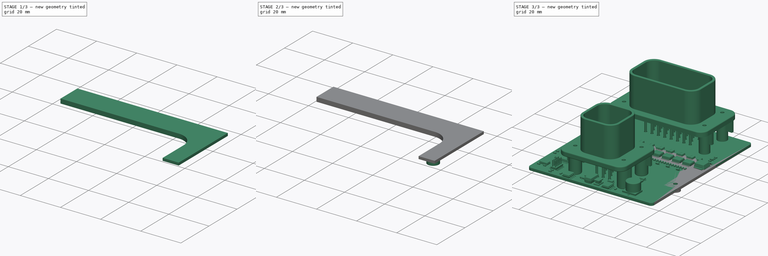
[diagram: build sequence overview — one tinted view per stage of 3, left to right]
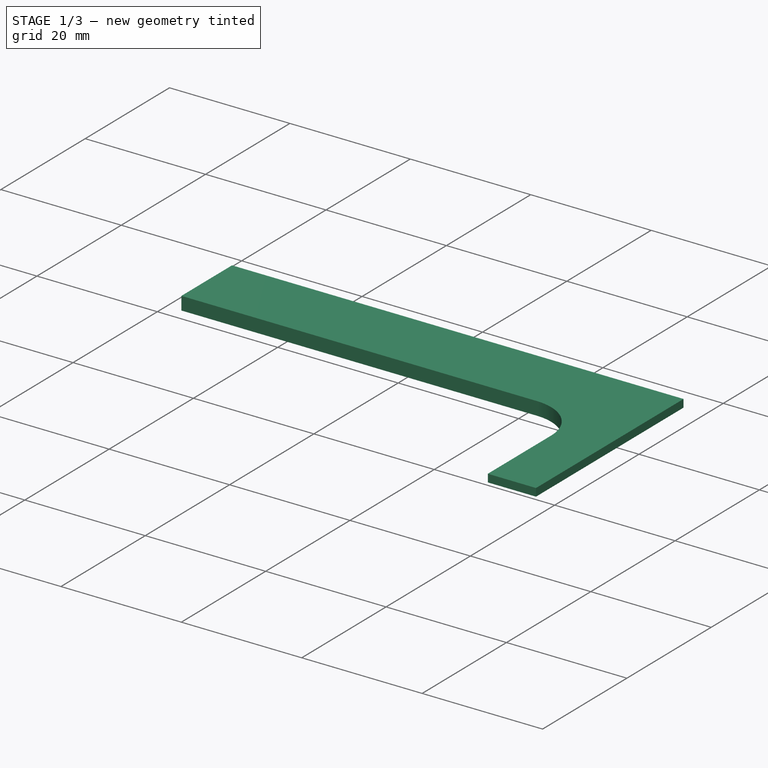
[diagram: stage 1 of 3 — iso view after this stage's code; geometry added in this stage tinted green]
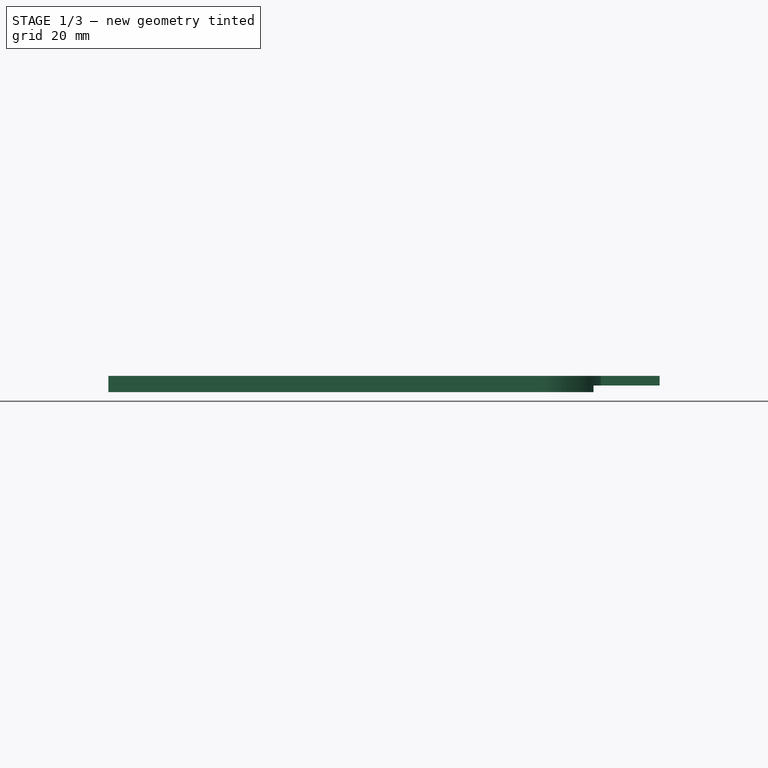
[diagram: stage 1 of 3 — front view after this stage's code; geometry added in this stage tinted green]
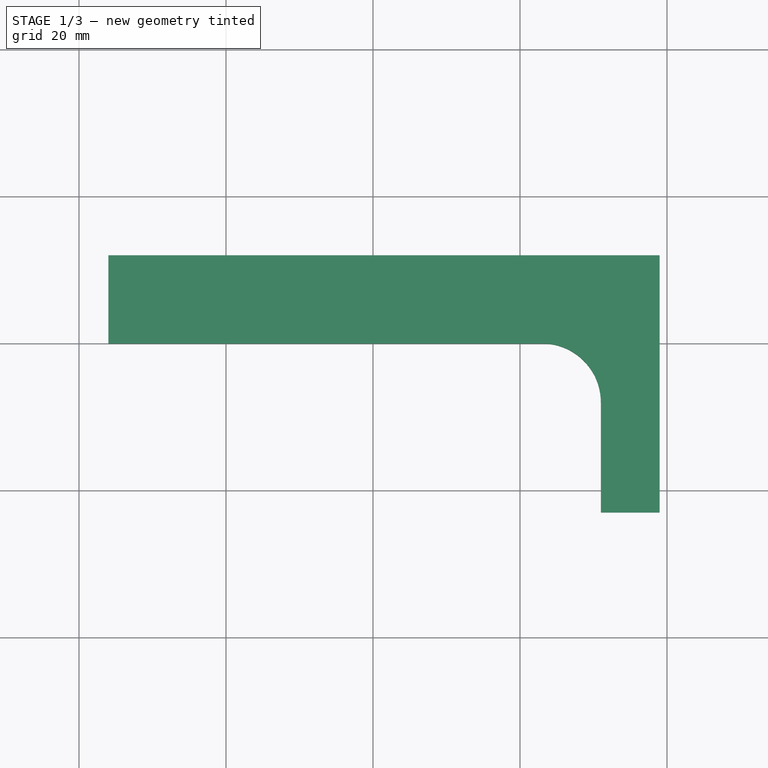
[diagram: stage 1 of 3 — top view after this stage's code; geometry added in this stage tinted green]
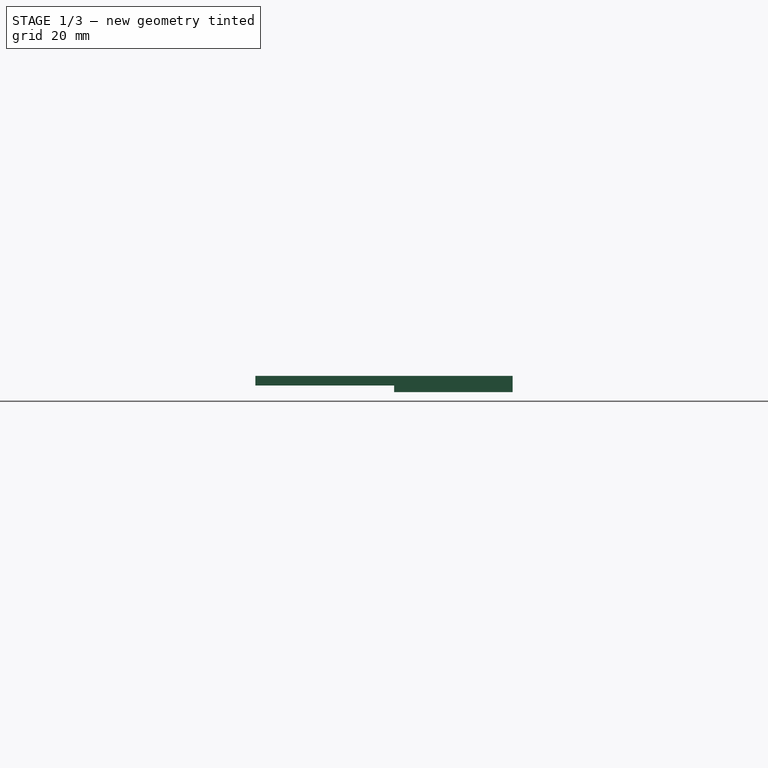
[diagram: stage 1 of 3 — right view after this stage's code; geometry added in this stage tinted green]
FCSTD DOCUMENT  (FreeCAD 0.17R13509 (Git))
Label: hcu_heatsink
License: All rights reserved
LicenseURL: http://en.wikipedia.org/wiki/All_rights_reserved
objects: Drawing::FeatureViewPython×14, Sketcher::SketchObject×4, Drawing::FeatureViewPart×4, PartDesign::Pad×3, Part::FeaturePython×1, PartDesign::Pocket×1, PartDesign::Body×1, Part::Feature×1, Drawing::FeaturePage×1
note: 15 computed .brp shape members not serialized (recipe doc carries the construction recipe); baked Part::Feature solids carry a one-line shape summary decoded from their .brp

FEATURE [Sketcher::SketchObject] Sketch
  MapMode = 5
  Support = -> [XY_Plane]
  sketch-geometry (7):
    g0: LineSegment StartX=-36 StartY=0 StartZ=0 EndX=23 EndY=0 EndZ=0
    g1: ArcOfCircle CenterX=23 CenterY=-8 CenterZ=0 NormalX=0 NormalY=0 NormalZ=1 AngleXU=0 Radius=8 StartAngle=0 EndAngle=1.5708
    g2: LineSegment StartX=31 StartY=-8 StartZ=0 EndX=31 EndY=-23 EndZ=0
    g3: LineSegment StartX=31 StartY=-23 StartZ=0 EndX=39 EndY=-23 EndZ=0
    g4: LineSegment StartX=39 StartY=-23 StartZ=0 EndX=39 EndY=12 EndZ=0
    g5: LineSegment StartX=39 StartY=12 StartZ=0 EndX=-36 EndY=12 EndZ=0
    g6: LineSegment StartX=-36 StartY=12 StartZ=0 EndX=-36 EndY=0 EndZ=0
  constraints (20):
    c: PointOnObject(g0,g-1)
    c: Horizontal(g0)
    c: Tangent(g0,g1) = 1.5708
    c: Vertical(g2)
    c: Coincident(g2,g3)
    c: Horizontal(g3)
    c: Coincident(g3,g4)
    c: Vertical(g4)
    c: Coincident(g4,g5)
    c: Horizontal(g5)
    c: Coincident(g5,g6)
    c: Coincident(g6,g0)
    c: Vertical(g6)
    c: Tangent(g1,g2) = 1.5708
    c: DistanceX(g-1,g3) = 39
    c: DistanceX(g3,g3) = 8
    c: Radius(g1) = 8
    c: DistanceX(g0,g-1) = 36
    c: DistanceY(g6,g6) = 12
    c: DistanceY(g3,g-1) = 23
FEATURE [PartDesign::Pad] Pad
  Length = 1.3
  Length2 = 100
  Profile = -> Sketch
  Reversed = true
  Type = 0
FEATURE [Sketcher::SketchObject] Sketch001
  ExternalGeometry = -> [Pad]
  MapMode = 5
  Placement = pos=(0,0,-1.3) rot=(1,0,0;3.14159rad)
  Support = -> [Pad]
  sketch-geometry (5):
    g0: LineSegment StartX=30 StartY=-12 StartZ=0 EndX=30 EndY=4.12702 EndZ=0
    g1: ArcOfCircle CenterX=23 CenterY=8 CenterZ=0 NormalX=0 NormalY=0 NormalZ=1 AngleXU=0 Radius=8 StartAngle=4.71239 EndAngle=5.77782
    g2: LineSegment StartX=23 StartY=0 StartZ=0 EndX=-36 EndY=0 EndZ=0
    g3: LineSegment StartX=-36 StartY=0 StartZ=0 EndX=-36 EndY=-12 EndZ=0
    g4: LineSegment StartX=-36 StartY=-12 StartZ=0 EndX=30 EndY=-12 EndZ=0
  constraints (13):
    c: PointOnObject(g0,g-4)
    c: PointOnObject(g0,g-3)
    c: Vertical(g0)
    c: Coincident(g1,g-3)
    c: Coincident(g1,g0)
    c: Coincident(g1,g-3)
    c: Tangent(g1,g2) = 1.5708
    c: Coincident(g2,g3)
    c: Coincident(g3,g-4)
    c: Vertical(g3)
    c: Coincident(g3,g4)
    c: Coincident(g4,g0)
    c: DistanceX(g0,g-4) = 9
FEATURE [PartDesign::Pad] Pad001
  BaseFeature = -> Pad
  Length = 0.9
  Length2 = 100
  Profile = -> Sketch001
  Type = 0
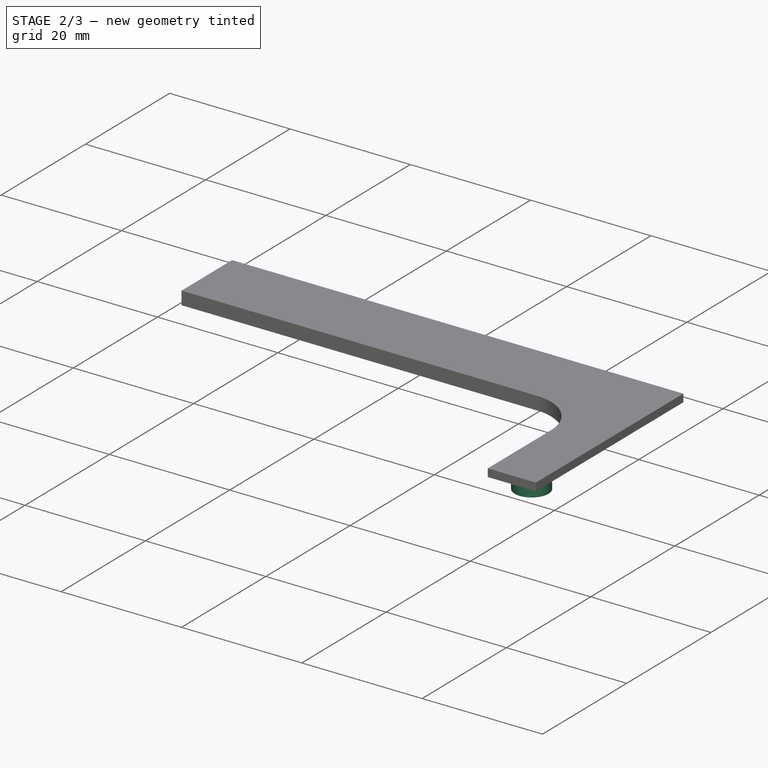
[diagram: stage 2 of 3 — iso view after this stage's code; geometry added in this stage tinted green]
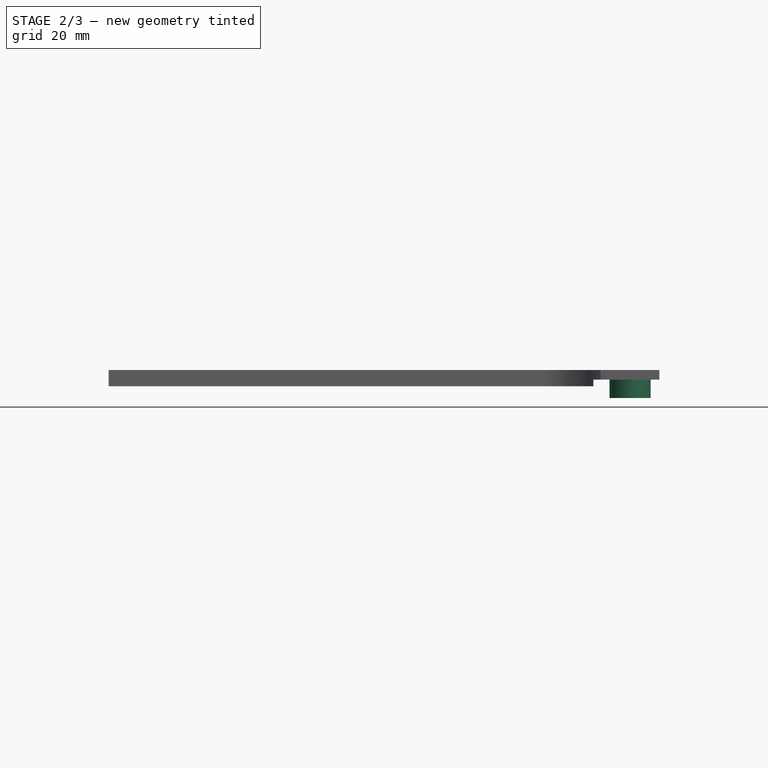
[diagram: stage 2 of 3 — front view after this stage's code; geometry added in this stage tinted green]
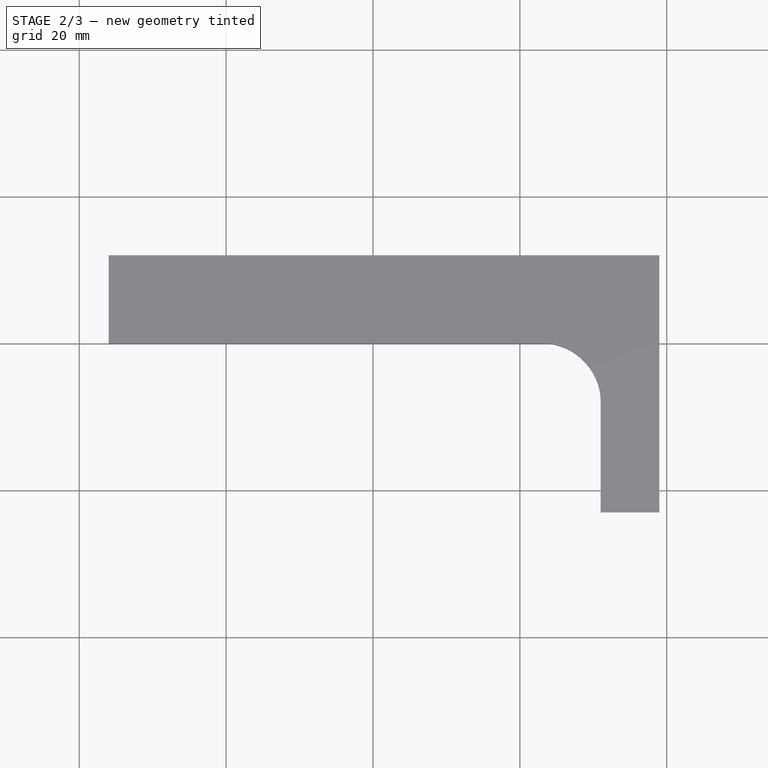
[diagram: stage 2 of 3 — top view after this stage's code; geometry added in this stage tinted green]
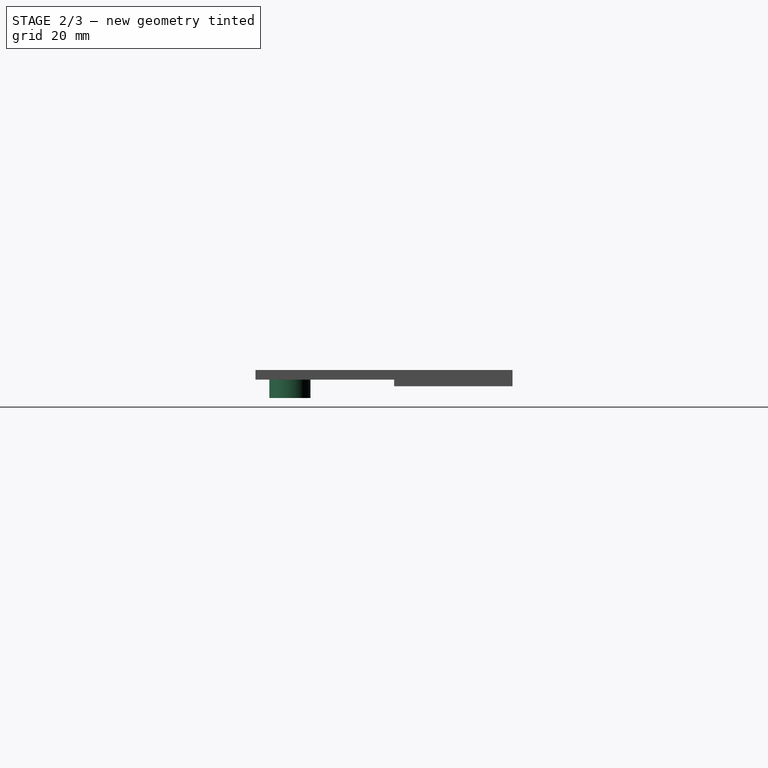
[diagram: stage 2 of 3 — right view after this stage's code; geometry added in this stage tinted green]
FEATURE [Sketcher::SketchObject] Sketch002
  MapMode = 5
  Placement = pos=(0,0,-1.3) rot=(1,0,0;3.14159rad)
  Support = -> [Pad001]
  sketch-geometry (1):
    g0: Circle CenterX=35 CenterY=18.3 CenterZ=0 NormalX=0 NormalY=0 NormalZ=1 AngleXU=0 Radius=2.8
  constraints (3):
    c: DistanceY(g-1,g0) = 18.3
    c: DistanceX(g-1,g0) = 35
    c: Radius(g0) = 2.8
FEATURE [PartDesign::Pad] Pad002
  BaseFeature = -> Pad001
  Length = 2.5
  Length2 = 100
  Profile = -> Sketch002
  Type = 0
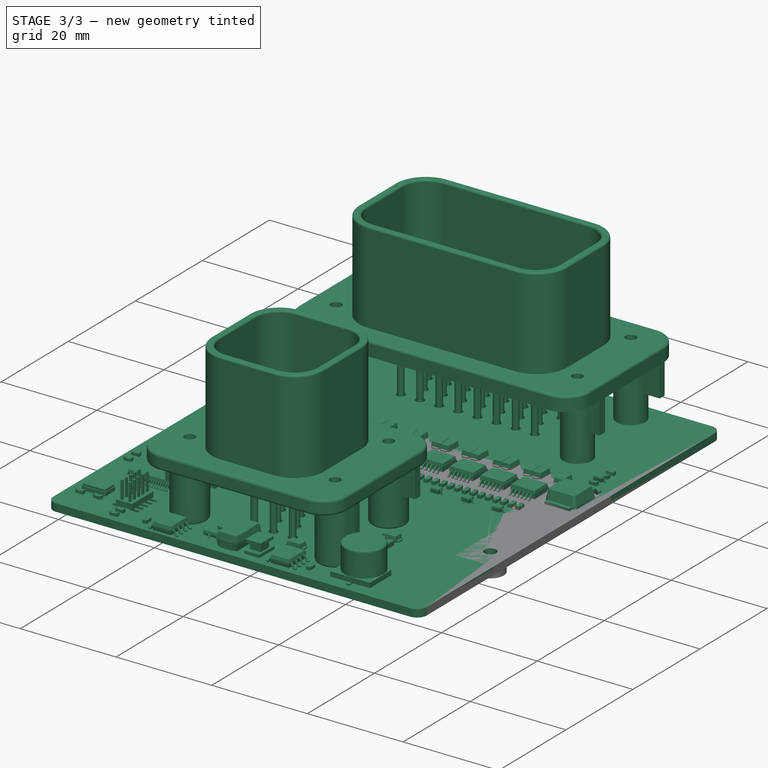
[diagram: stage 3 of 3 — iso view after this stage's code; geometry added in this stage tinted green]
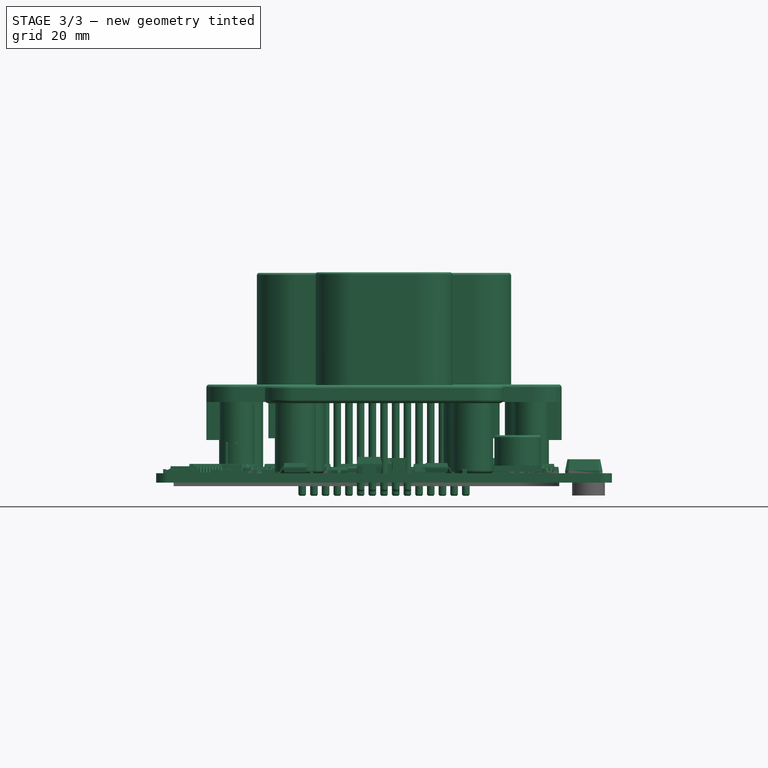
[diagram: stage 3 of 3 — front view after this stage's code; geometry added in this stage tinted green]
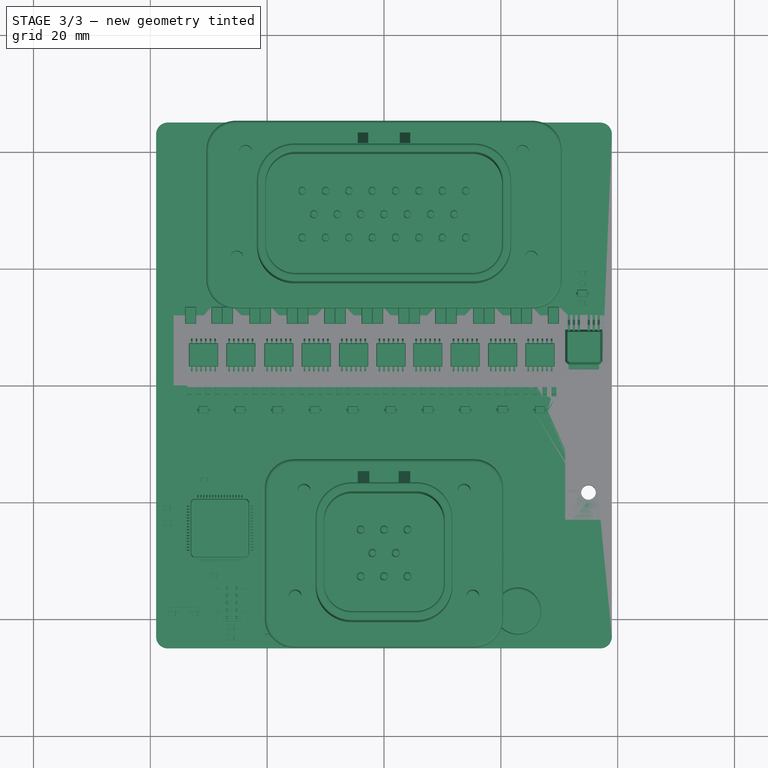
[diagram: stage 3 of 3 — top view after this stage's code; geometry added in this stage tinted green]
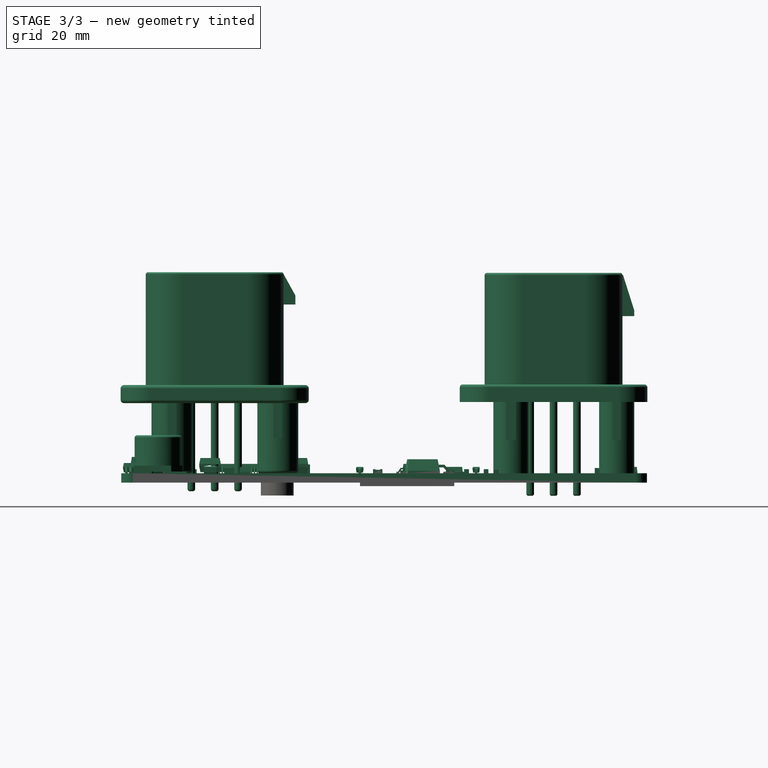
[diagram: stage 3 of 3 — right view after this stage's code; geometry added in this stage tinted green]
FEATURE [Part::FeaturePython] hcu_01  # a2plus imported part (geometry in sourceFile) (typed FeaturePython)
  fixedPosition = true
  sourceFile = <userpath>/uw/project/hcu/hw/hcu.FCStd
  timeLastImport = 1.5416e+09
  updateColors = true
FEATURE [Sketcher::SketchObject] Sketch003
  ExternalGeometry = -> [Pad002]
  MapMode = 5
  Placement = pos=(0,0,-3.8) rot=(1,0,0;3.14159rad)
  Support = -> [Pad002]
  sketch-geometry (1):
    g0: Circle CenterX=35 CenterY=18.3 CenterZ=0 NormalX=0 NormalY=0 NormalZ=1 AngleXU=0 Radius=1.25
  constraints (2):
    c: Coincident(g0,g-3)
    c: Radius(g0) = 1.25
FEATURE [PartDesign::Pocket] Pocket
  BaseFeature = -> Pad002
  Length = 5
  Length2 = 100
  Profile = -> Sketch003
  Type = 1
FEATURE [PartDesign::Body] Body
  Group = -> [Sketch,Pad,Sketch001,Pad001,Sketch002,Pad002,Sketch003,Pocket]
  Origin = -> Origin
  Placement = pos=(0,0,3.8) rot=(0,0,1;0rad)
  Tip = -> Pocket
FEATURE [Part::Feature] Pocket001
  shape: bbox 75 x 35 x 3.8 mm, 14 faces (baked)
FEATURE [Drawing::FeatureViewPart] Ortho  label="Ortho_0_0"
  Direction = (1,0,0)
  HiddenWidth = 0.15
  LineWidth = 0.35
  Rotation = -90
  Scale = 2
  ShowHiddenLines = false
  ShowSmoothLines = false
  Source = -> Pocket001
  Tolerance = 0.05
  ViewResult = <g id="Ortho_0_0"\n   transform="rotate(-90,116,29.8) translate(116,29.8) scale(2,2)"\n  >\n<g   fill="none"\n   stroke="rgb(0, 0, 0)"\n   stroke-linecap="butt"\n   stroke-linejoin="miter"\n   stroke-width="0.175000"\n   transform="scale(1,-1)"\n  >\n<path id= "1" d=" M -3.8 15.5 L -1.3 15.5 " />\n<path id= "2" d=" M -3.8 21.1 L -1.3 21.1 " />\n</g>\n<g   fill="none"\n   stroke="rgb(0, 0, 0)"\n   stroke-linecap="butt"\n   stroke-linejoin="miter"\n   stroke-width="0.175000"\n   transform="scale(1,-1)"\n  >\n<path id= "1" d=" M 0 23 L 0 -12 " />\n<path id= "2" d=" M 0 23 L -1.3 23 " />\n<path id= "3" d=" M 0 -12 L -1.3 -12 " />\n<path id= "4" d=" M -1.3 23 L -1.3 -12 " />\n<path d="M-3.8,18.3 Q-3.8,18.4568 -3.8,18.6135  Q-3.8,18.9253 -3.8,19.2248  Q-3.8,19.3698 -3.8,19.5149  Q-3.8,19.6523 -3.8,19.7897  Q-3.8,19.9177 -3.8,20.0458  Q-3.8,20.1628 -3.8,20.2799  Q-3.8,20.3845 -3.8,20.4891  Q-3.8,20.58 -3.8,20.6708  Q-3.8,20.7468 -3.8,20.8227  Q-3.8,20.8828 -3.8,20.9429  Q-3.8,20.9863 -3.8,21.0298  Q-3.8,21.0561 -3.8,21.0824  Q-3.8,21.0912 -3.8,21.1 " /><path d="M-3.8,15.5 Q-3.8,15.5088 -3.8,15.5176  Q-3.8,15.5439 -3.8,15.5702  Q-3.8,15.6137 -3.8,15.6571  Q-3.8,15.7172 -3.8,15.7773  Q-3.8,15.8532 -3.8,15.9292  Q-3.8,16.02 -3.8,16.1109  Q-3.8,16.2155 -3.8,16.3201  Q-3.8,16.4372 -3.8,16.5542  Q-3.8,16.6823 -3.8,16.8103  Q-3.8,16.9477 -3.8,17.0851  Q-3.8,17.2302 -3.8,17.3752  Q-3.8,17.5261 -3.8,17.6769  Q-3.8,17.9854 -3.8,18.3 " /><path id= "7" d=" M -1.3 -12 L -2.2 -12 " />\n<path id= "8" d=" M -2.2 -12 L -2.2 4.12702 " />\n<path id= "9" d=" M -1.3 4.12702 L -2.2 4.12702 " />\n<path d="M-2.2,-4.08562e-13 L-2.2,0.0231552  L-2.2,0.0924868  L-2.2,0.207593  L-2.2,0.367809  L-2.2,0.572206  L-2.2,0.8196  L-2.2,1.10856  L-2.2,1.43741  L-2.2,1.80426  L-2.2,2.20697  L-2.2,2.64321  L-2.2,3.11046  L-2.2,3.60602  L-2.2,4.12702 " /></g>\n</g>
  Visible = false
  X = 116
  Y = 29.8
FEATURE [Drawing::FeatureViewPart] Ortho001  label="Ortho_1_0"
  Direction = (0,1,0)
  HiddenWidth = 0.15
  LineWidth = 0.35
  Rotation = -90
  Scale = 2
  ShowHiddenLines = false
  ShowSmoothLines = false
  Source = -> Pocket001
  Tolerance = 0.05
  ViewResult = <g id="Ortho_1_0"\n   transform="rotate(-90,278,29.8) translate(278,29.8) scale(2,2)"\n  >\n<g   fill="none"\n   stroke="rgb(0, 0, 0)"\n   stroke-linecap="butt"\n   stroke-linejoin="miter"\n   stroke-width="0.175000"\n   transform="scale(1,-1)"\n  >\n<path id= "1" d=" M -3.8 32.2 L -1.3 32.2 " />\n</g>\n<g   fill="none"\n   stroke="rgb(0, 0, 0)"\n   stroke-linecap="butt"\n   stroke-linejoin="miter"\n   stroke-width="0.175000"\n   transform="scale(1,-1)"\n  >\n<path d="M0,31 L0,30.9497  L0,30.7994  L0,30.5511  L0,30.2078  L0,29.7738  L0,29.2547  L0,28.6569  L0,27.9879  L0,27.2563  L0,26.4711  L0,25.6422  L0,24.7802  L0,23.8957  L0,23 " /><path id= "2" d=" M 0 39 L 0 -36 " />\n<path d="M0,33.75 L0,33.7813  L0,33.8738  L0,34.0227  L0,34.2206  L0,34.4576  L0,34.7218  L0,35  L0,35.2782  L0,35.5424  L0,35.7794  L0,35.9773  L0,36.1262  L0,36.2187  L0,36.25 " /><path id= "4" d=" M 0 39 L -1.3 39 " />\n<path id= "5" d=" M -1.3 39 L -1.3 30 " />\n<path d="M-3.8,32.2 L-3.8,32.2702  L-3.8,32.4773  L-3.8,32.8109  L-3.8,33.2542  L-3.8,33.7851  L-3.8,34.3769  L-3.8,35  L-3.8,35.6231  L-3.8,36.2149  L-3.8,36.7458  L-3.8,37.1891  L-3.8,37.5227  L-3.8,37.7298  L-3.8,37.8 " /><path id= "7" d=" M -1.3 30 L -2.2 30 " />\n<path id= "8" d=" M -2.2 -36 L -2.2 30 " />\n<path id= "9" d=" M -1.3 37.8 L -3.8 37.8 " />\n<path id= "10" d=" M 0 -36 L -2.2 -36 " />\n</g>\n</g>
  Visible = false
  X = 278
  Y = 29.8
FEATURE [Drawing::FeatureViewPart] Ortho002  label="Ortho_0_-1"
  Direction = (0,0,-1)
  HiddenWidth = 0.15
  LineWidth = 0.35
  Rotation = 90
  Scale = 2
  ShowHiddenLines = false
  ShowSmoothLines = false
  Source = -> Pocket001
  Tolerance = 0.05
  ViewResult = <g id="Ortho_0_-1"\n   transform="rotate(90,116,135.2) translate(116,135.2) scale(2,2)"\n  >\n<g   fill="none"\n   stroke="rgb(0, 0, 0)"\n   stroke-linecap="butt"\n   stroke-linejoin="miter"\n   stroke-width="0.175000"\n   transform="scale(1,-1)"\n  >\n<path id= "1" d=" M -31 -8 L -31 -23 " />\n<path id= "2" d=" M -39 -23 L -39 12 " />\n<path id= "3" d=" M -31 -23 L -39 -23 " />\n<circle cx ="-35" cy ="-18.3" r ="1.25" /><path id= "5" d=" M -39 12 L -30 12 " />\n<path d="M-31 -8 A8 8 0 0 0 -30 -4.12702" /><circle cx ="-35" cy ="-18.3" r ="2.8" /><circle cx ="-35" cy ="-18.3" r ="2.8" /><path id= "9" d=" M -30 12 L -30 -4.12702 " />\n<path d="M-23 4.08562e-13 A8 8 0 0 1 -30 -4.12702" /><path id= "11" d=" M -23 4.0856e-13 L 36 4.003e-13 " />\n<path id= "12" d=" M 36 4.0059e-13 L 36 12 " />\n<path id= "13" d=" M 36 12 L -30 12 " />\n</g>\n</g>
  Visible = false
  X = 116
  Y = 135.2
FEATURE [Drawing::FeatureViewPart] Ortho003  label="Ortho_1_-1"
  Direction = (0.57735,0.57735,-0.57735)
  HiddenWidth = 0.15
  LineWidth = 0.35
  Rotation = 60
  Scale = 2
  ShowHiddenLines = false
  ShowSmoothLines = false
  Source = -> Pocket001
  Tolerance = 0.05
  ViewResult = <blob: 2254 chars omitted>
  Visible = false
  X = 284.9
  Y = 125.831
FEATURE [Drawing::FeatureViewPython] rad001  # drawing view (typed FeaturePython)
  Rotation = 0
  ViewResult = <g>  <circle cx ="99.999993" cy ="89.200000" r="0.250000" stroke="none" fill="rgb(0,0,255)" /> \n<line x1="108.465395" y1="69.554043" x2="99.999993" y2="89.200000" style="stroke:rgb(0,0,255);stroke-width:0.50" />\n<polygon points="106.331571,74.506085 104.226030,76.865471 104.748676,78.179564 106.062770,77.656918" style="fill:rgb(0,0,255);stroke:rgb(0,0,255);stroke-width:0" />\n<line x1="108.465395" y1="69.554043" x2="121.760108" y2="69.554043" style="stroke:rgb(0,0,255);stroke-width:0.50" />\n<text x="115.112751" y="67.554043" font-family="inherit" font-size="3.6" fill="rgb(0,0,255)" text-anchor="middle" transform="rotate(0.000000 115.112751,67.554043)" >R8</text> </g>
  Visible = false
  X = 0
  Y = 0
  arrowL1 = 3
  arrowL2 = 1
  arrowW = 2
  arrow_scheme = 0
  autoPlaceOffset = 2
  autoPlaceText = true
  centerPointDia = 0.5
  click1_x = 108.465
  click1_y = 69.554
  click2_x = 121.76
  click2_y = 69.3919
  click3_x = 121.76
  click3_y = 69.3919
  comma_decimal_place = false
  lineColor = rgb(0,0,255)
  strokeWidth = 0.5
  textFormat_radial = R%(value)3.3f
  textRenderer_color = rgb(0,0,255)
  textRenderer_family = inherit
  textRenderer_size = 3.6
  unit_custom_scale = 1
  unit_scheme = 0
FEATURE [Drawing::FeatureViewPython] rad002  # drawing view (typed FeaturePython)
  Rotation = 0
  ViewResult = <g>  <circle cx ="79.400000" cy ="65.200000" r="0.250000" stroke="none" fill="rgb(0,0,255)" /> \n<line x1="82.524494" y1="54.313763" x2="79.400000" y2="65.200000" style="stroke:rgb(0,0,255);stroke-width:0.50" />\n<polygon points="80.944901,59.817317 79.156082,62.425022 79.841400,63.662090 81.078469,62.976772" style="fill:rgb(0,0,255);stroke:rgb(0,0,255);stroke-width:0" />\n<line x1="82.524494" y1="54.313763" x2="94.846422" y2="54.313763" style="stroke:rgb(0,0,255);stroke-width:0.50" />\n<text x="88.685458" y="52.313763" font-family="inherit" font-size="3.6" fill="rgb(0,0,255)" text-anchor="middle" transform="rotate(0.000000 88.685458,52.313763)" >R2.8</text> </g>
  Visible = false
  X = 0
  Y = 0
  arrowL1 = 3
  arrowL2 = 1
  arrowW = 2
  arrow_scheme = 0
  autoPlaceOffset = 2
  autoPlaceText = true
  centerPointDia = 0.5
  click1_x = 82.5245
  click1_y = 54.3138
  click2_x = 94.8464
  click2_y = 53.9895
  click3_x = 94.8464
  click3_y = 53.9895
  comma_decimal_place = false
  lineColor = rgb(0,0,255)
  strokeWidth = 0.5
  textFormat_radial = R%(value)3.3f
  textRenderer_color = rgb(0,0,255)
  textRenderer_family = inherit
  textRenderer_size = 3.6
  unit_custom_scale = 1
  unit_scheme = 0
FEATURE [Drawing::FeatureViewPython] rad003  # drawing view (typed FeaturePython)
  Rotation = 0
  ViewResult = <g>  <circle cx ="79.400000" cy ="65.200000" r="0.250000" stroke="none" fill="rgb(0,0,255)" /> \n<line x1="89.982503" y1="62.258164" x2="79.400000" y2="65.200000" style="stroke:rgb(0,0,255);stroke-width:0.50" />\n<polygon points="81.808663,64.530415 84.966892,64.690377 85.662523,63.459078 84.431223,62.763447" style="fill:rgb(0,0,255);stroke:rgb(0,0,255);stroke-width:0" />\n<line x1="89.982503" y1="62.258164" x2="99.386080" y2="62.258164" style="stroke:rgb(0,0,255);stroke-width:0.50" />\n<text x="94.684291" y="60.258164" font-family="inherit" font-size="3.6" fill="rgb(0,0,255)" text-anchor="middle" transform="rotate(0.000000 94.684291,60.258164)" >R1.25</text> </g>
  Visible = false
  X = 0
  Y = 0
  arrowL1 = 3
  arrowL2 = 1
  arrowW = 2
  arrow_scheme = 0
  autoPlaceOffset = 2
  autoPlaceText = true
  centerPointDia = 0.5
  click1_x = 89.9825
  click1_y = 62.2582
  click2_x = 99.3861
  click2_y = 62.5824
  click3_x = 99.3861
  click3_y = 62.5824
  comma_decimal_place = false
  lineColor = rgb(0,0,255)
  strokeWidth = 0.5
  textFormat_radial = R%(value)3.3f
  textRenderer_color = rgb(0,0,255)
  textRenderer_family = inherit
  textRenderer_size = 3.6
  unit_custom_scale = 1
  unit_scheme = 0
FEATURE [Drawing::FeatureViewPython] weld001  # drawing view (typed FeaturePython)
  Rotation = 0
  ViewResult = <g   >\n<line x1="65.798016" y1="70.661935" x2="79.400000" y2="65.200000" style="stroke:rgb(0,0,255);stroke-width:0.50" />\n<polygon points="79.400000,65.200000 76.243431,65.389923 75.688086,66.690535 76.988698,67.245880" style="fill:rgb(0,0,255);stroke:rgb(0,0,255);stroke-width:0" />\n<line x1="65.798016" y1="70.661935" x2="51.611586" y2="70.661935" style="stroke:rgb(0,0,255);stroke-width:0.50" />\n</g> 
  Visible = false
  X = 0
  Y = 0
  arrowL1 = 3
  arrowL2 = 1
  arrowW = 2
  click1_x = 65.798
  click1_y = 70.6619
  click2_x = 51.6116
  click2_y = 70.9322
  lineColor = rgb(0,0,255)
  strokeWidth = 0.5
  textRenderer_color = rgb(0,0,255)
  textRenderer_family = inherit
  textRenderer_size = 3.6
FEATURE [Drawing::FeatureViewPython] text001  # drawing view (typed FeaturePython)
  Rotation = 0
  ViewResult = <g> <text x="53.097783" y="69.445956" font-family="inherit" font-size="5" fill="rgb(0,0,0)" text-anchor="inherit" transform="rotate(0.000000 53.097783,69.445956)" >M3</text> </g>
  Visible = false
  X = 0
  Y = 0
  click1_x = 53.0978
  click1_y = 69.446
  rotation = 0
  text = M3
  textRenderer_addText_color = rgb(0,0,0)
  textRenderer_addText_family = inherit
  textRenderer_addText_size = 5
FEATURE [Drawing::FeatureViewPython] dim001  # drawing view (typed FeaturePython)
  Rotation = 0
  ViewResult = <g> \n  <line x1="83.000000" y1="37.400000" x2="62.095839" y2="37.400000" style="stroke:rgb(0,0,255);stroke-width:0.50" />\n<line x1="83.000000" y1="32.400000" x2="62.095839" y2="32.400000" style="stroke:rgb(0,0,255);stroke-width:0.50" />\n<line x1="63.095839" y1="37.400000" x2="63.095839" y2="32.400000" style="stroke:rgb(0,0,255);stroke-width:0.50" /> \n  <polygon points="63.095839,32.400000 64.095839,29.400000 63.095839,28.400000 62.095839,29.400000" style="fill:rgb(0,0,255);stroke:rgb(0,0,255);stroke-width:0" /><polygon points="63.095839,37.400000 62.095839,40.400000 63.095839,41.400000 64.095839,40.400000" style="fill:rgb(0,0,255);stroke:rgb(0,0,255);stroke-width:0" /> \n  <text x="61.095839" y="34.900000" font-family="inherit" font-size="3.6" fill="rgb(0,0,255)" text-anchor="middle" transform="rotate(-90.000000 61.095839,34.900000)" >2.5</text> </g>
  Visible = false
  X = 0
  Y = 0
  arrowL1 = 3
  arrowL2 = 1
  arrowW = 2
  arrow_scheme = 0
  autoPlaceOffset = 2
  autoPlaceText = true
  click1_x = 63.0958
  click1_y = 40.5327
  click2_x = 63.0958
  click2_y = 40.5327
  comma_decimal_place = false
  dimension_line_overshoot = 1
  gap_datum_points = 2
  halfDimension_linear = false
  lineColor = rgb(0,0,255)
  strokeWidth = 0.5
  textFormat_linear = %(value)3.3f
  textRenderer_color = rgb(0,0,255)
  textRenderer_family = inherit
  textRenderer_size = 3.6
  unit_custom_scale = 1
  unit_scheme = 0
FEATURE [Drawing::FeatureViewPython] dim002  # drawing view (typed FeaturePython)
  Rotation = 0
  ViewResult = <g> \n  <line x1="142.000000" y1="207.200000" x2="153.223297" y2="207.200000" style="stroke:rgb(0,0,255);stroke-width:0.50" />\n<line x1="142.000000" y1="75.200000" x2="153.223297" y2="75.200000" style="stroke:rgb(0,0,255);stroke-width:0.50" />\n<line x1="152.223297" y1="207.200000" x2="152.223297" y2="75.200000" style="stroke:rgb(0,0,255);stroke-width:0.50" /> \n  <polygon points="152.223297,75.200000 151.223297,78.200000 152.223297,79.200000 153.223297,78.200000" style="fill:rgb(0,0,255);stroke:rgb(0,0,255);stroke-width:0" /><polygon points="152.223297,207.200000 153.223297,204.200000 152.223297,203.200000 151.223297,204.200000" style="fill:rgb(0,0,255);stroke:rgb(0,0,255);stroke-width:0" /> \n  <text x="150.223297" y="141.200000" font-family="inherit" font-size="3.6" fill="rgb(0,0,255)" text-anchor="middle" transform="rotate(-90.000000 150.223297,141.200000)" >66</text> </g>
  Visible = false
  X = 0
  Y = 0
  arrowL1 = 3
  arrowL2 = 1
  arrowW = 2
  arrow_scheme = 0
  autoPlaceOffset = 2
  autoPlaceText = true
  click1_x = 152.223
  click1_y = 140.561
  click2_x = 152.223
  click2_y = 140.561
  comma_decimal_place = false
  dimension_line_overshoot = 1
  gap_datum_points = 2
  halfDimension_linear = false
  lineColor = rgb(0,0,255)
  strokeWidth = 0.5
  textFormat_linear = %(value)3.3f
  textRenderer_color = rgb(0,0,255)
  textRenderer_family = inherit
  textRenderer_size = 3.6
  unit_custom_scale = 1
  unit_scheme = 0
FEATURE [Drawing::FeatureViewPython] dim003  # drawing view (typed FeaturePython)
  Rotation = 0
  ViewResult = <g> \n  <line x1="116.000000" y1="209.200000" x2="116.000000" y2="220.434793" style="stroke:rgb(0,0,255);stroke-width:0.50" />\n<line x1="140.000000" y1="209.200000" x2="140.000000" y2="220.434793" style="stroke:rgb(0,0,255);stroke-width:0.50" />\n<line x1="116.000000" y1="219.434793" x2="140.000000" y2="219.434793" style="stroke:rgb(0,0,255);stroke-width:0.50" /> \n  <polygon points="140.000000,219.434793 137.000000,218.434793 136.000000,219.434793 137.000000,220.434793" style="fill:rgb(0,0,255);stroke:rgb(0,0,255);stroke-width:0" /><polygon points="116.000000,219.434793 119.000000,220.434793 120.000000,219.434793 119.000000,218.434793" style="fill:rgb(0,0,255);stroke:rgb(0,0,255);stroke-width:0" /> \n  <text x="128.000000" y="217.434793" font-family="inherit" font-size="3.6" fill="rgb(0,0,255)" text-anchor="middle" transform="rotate(0.000000 128.000000,217.434793)" >12</text> </g>
  Visible = false
  X = 0
  Y = 0
  arrowL1 = 3
  arrowL2 = 1
  arrowW = 2
  arrow_scheme = 0
  autoPlaceOffset = 2
  autoPlaceText = true
  click1_x = 129.819
  click1_y = 219.435
  click2_x = 129.819
  click2_y = 219.435
  comma_decimal_place = false
  dimension_line_overshoot = 1
  gap_datum_points = 2
  halfDimension_linear = false
  lineColor = rgb(0,0,255)
  strokeWidth = 0.5
  textFormat_linear = %(value)3.3f
  textRenderer_color = rgb(0,0,255)
  textRenderer_family = inherit
  textRenderer_size = 3.6
  unit_custom_scale = 1
  unit_scheme = 0
FEATURE [Drawing::FeatureViewPython] dim004  # drawing view (typed FeaturePython)
  Rotation = 0
  ViewResult = <g> \n  <line x1="70.000000" y1="55.200000" x2="70.000000" y2="48.411191" style="stroke:rgb(0,0,255);stroke-width:0.50" />\n<line x1="140.000000" y1="55.200000" x2="140.000000" y2="48.411191" style="stroke:rgb(0,0,255);stroke-width:0.50" />\n<line x1="70.000000" y1="49.411191" x2="140.000000" y2="49.411191" style="stroke:rgb(0,0,255);stroke-width:0.50" /> \n  <polygon points="140.000000,49.411191 137.000000,48.411191 136.000000,49.411191 137.000000,50.411191" style="fill:rgb(0,0,255);stroke:rgb(0,0,255);stroke-width:0" /><polygon points="70.000000,49.411191 73.000000,50.411191 74.000000,49.411191 73.000000,48.411191" style="fill:rgb(0,0,255);stroke:rgb(0,0,255);stroke-width:0" /> \n  <text x="105.000000" y="47.411191" font-family="inherit" font-size="3.6" fill="rgb(0,0,255)" text-anchor="middle" transform="rotate(0.000000 105.000000,47.411191)" >35</text> </g>
  Visible = false
  X = 0
  Y = 0
  arrowL1 = 3
  arrowL2 = 1
  arrowW = 2
  arrow_scheme = 0
  autoPlaceOffset = 2
  autoPlaceText = true
  click1_x = 122.147
  click1_y = 49.4112
  click2_x = 122.147
  click2_y = 49.4112
  comma_decimal_place = false
  dimension_line_overshoot = 1
  gap_datum_points = 2
  halfDimension_linear = false
  lineColor = rgb(0,0,255)
  strokeWidth = 0.5
  textFormat_linear = %(value)3.3f
  textRenderer_color = rgb(0,0,255)
  textRenderer_family = inherit
  textRenderer_size = 3.6
  unit_custom_scale = 1
  unit_scheme = 0
FEATURE [Drawing::FeatureViewPython] dim005  # drawing view (typed FeaturePython)
  Rotation = 0
  ViewResult = <g> \n  <line x1="142.000000" y1="57.200000" x2="153.223297" y2="57.200000" style="stroke:rgb(0,0,255);stroke-width:0.50" />\n<line x1="142.000000" y1="75.200000" x2="153.223297" y2="75.200000" style="stroke:rgb(0,0,255);stroke-width:0.50" />\n<line x1="152.223297" y1="57.200000" x2="152.223297" y2="75.200000" style="stroke:rgb(0,0,255);stroke-width:0.50" /> \n  <polygon points="152.223297,75.200000 153.223297,72.200000 152.223297,71.200000 151.223297,72.200000" style="fill:rgb(0,0,255);stroke:rgb(0,0,255);stroke-width:0" /><polygon points="152.223297,57.200000 151.223297,60.200000 152.223297,61.200000 153.223297,60.200000" style="fill:rgb(0,0,255);stroke:rgb(0,0,255);stroke-width:0" /> \n  <text x="150.223297" y="66.200000" font-family="inherit" font-size="3.6" fill="rgb(0,0,255)" text-anchor="middle" transform="rotate(-90.000000 150.223297,66.200000)" >9</text> </g>
  Visible = false
  X = 0
  Y = 0
  arrowL1 = 3
  arrowL2 = 1
  arrowW = 2
  arrow_scheme = 0
  autoPlaceOffset = 2
  autoPlaceText = true
  click1_x = 152.223
  click1_y = 68.4391
  click2_x = 152.223
  click2_y = 68.4391
  comma_decimal_place = false
  dimension_line_overshoot = 1
  gap_datum_points = 2
  halfDimension_linear = false
  lineColor = rgb(0,0,255)
  strokeWidth = 0.5
  textFormat_linear = %(value)3.3f
  textRenderer_color = rgb(0,0,255)
  textRenderer_family = inherit
  textRenderer_size = 3.6
  unit_custom_scale = 1
  unit_scheme = 0
FEATURE [Drawing::FeatureViewPython] dim006  # drawing view (typed FeaturePython)
  Rotation = 0
  ViewResult = <g> \n  <line x1="68.000000" y1="29.800000" x2="54.169452" y2="29.800000" style="stroke:rgb(0,0,255);stroke-width:0.50" />\n<line x1="68.000000" y1="32.400000" x2="54.169452" y2="32.400000" style="stroke:rgb(0,0,255);stroke-width:0.50" />\n<line x1="55.169452" y1="29.800000" x2="55.169452" y2="32.400000" style="stroke:rgb(0,0,255);stroke-width:0.50" /> \n  <polygon points="55.169452,32.400000 54.169452,35.400000 55.169452,36.400000 56.169452,35.400000" style="fill:rgb(0,0,255);stroke:rgb(0,0,255);stroke-width:0" /><polygon points="55.169452,29.800000 56.169452,26.800000 55.169452,25.800000 54.169452,26.800000" style="fill:rgb(0,0,255);stroke:rgb(0,0,255);stroke-width:0" /> \n  <text x="53.169452" y="31.100000" font-family="inherit" font-size="3.6" fill="rgb(0,0,255)" text-anchor="middle" transform="rotate(-90.000000 53.169452,31.100000)" >1.3</text> </g>
  Visible = false
  X = 0
  Y = 0
  arrowL1 = 3
  arrowL2 = 1
  arrowW = 2
  arrow_scheme = 0
  autoPlaceOffset = 2
  autoPlaceText = true
  click1_x = 55.1695
  click1_y = 30.6247
  click2_x = 55.1695
  click2_y = 30.6247
  comma_decimal_place = false
  dimension_line_overshoot = 1
  gap_datum_points = 2
  halfDimension_linear = false
  lineColor = rgb(0,0,255)
  strokeWidth = 0.5
  textFormat_linear = %(value)3.3f
  textRenderer_color = rgb(0,0,255)
  textRenderer_family = inherit
  textRenderer_size = 3.6
  unit_custom_scale = 1
  unit_scheme = 0
FEATURE [Drawing::FeatureViewPython] dim007  # drawing view (typed FeaturePython)
  Rotation = 0
  ViewResult = <g> \n  <line x1="142.000000" y1="32.400000" x2="146.898807" y2="32.400000" style="stroke:rgb(0,0,255);stroke-width:0.50" />\n<line x1="142.000000" y1="34.200000" x2="146.898807" y2="34.200000" style="stroke:rgb(0,0,255);stroke-width:0.50" />\n<line x1="145.898807" y1="32.400000" x2="145.898807" y2="34.200000" style="stroke:rgb(0,0,255);stroke-width:0.50" /> \n  <polygon points="145.898807,34.200000 144.898807,37.200000 145.898807,38.200000 146.898807,37.200000" style="fill:rgb(0,0,255);stroke:rgb(0,0,255);stroke-width:0" /><polygon points="145.898807,32.400000 146.898807,29.400000 145.898807,28.400000 144.898807,29.400000" style="fill:rgb(0,0,255);stroke:rgb(0,0,255);stroke-width:0" /> \n  <text x="150.496262" y="35.841379" font-family="inherit" font-size="3.6" fill="rgb(0,0,255)" text-anchor="inherit" transform="rotate(-90.000000 150.496262,35.841379)" >0.9</text> </g>
  Visible = false
  X = 0
  Y = 0
  arrowL1 = 3
  arrowL2 = 1
  arrowW = 2
  arrow_scheme = 0
  autoPlaceOffset = 2
  autoPlaceText = false
  click1_x = 145.899
  click1_y = 34.9969
  click2_x = 150.496
  click2_y = 35.8414
  comma_decimal_place = false
  dimension_line_overshoot = 1
  gap_datum_points = 2
  halfDimension_linear = false
  lineColor = rgb(0,0,255)
  strokeWidth = 0.5
  textFormat_linear = %(value)3.3f
  textRenderer_color = rgb(0,0,255)
  textRenderer_family = inherit
  textRenderer_size = 3.6
  unit_custom_scale = 1
  unit_scheme = 0
FEATURE [Drawing::FeatureViewPython] dim008  # drawing view (typed FeaturePython)
  Rotation = 0
  ViewResult = <g> \n  <line x1="70.000000" y1="75.200000" x2="70.000000" y2="83.019212" style="stroke:rgb(0,0,255);stroke-width:0.50" />\n<line x1="79.400000" y1="67.200000" x2="79.400000" y2="83.019212" style="stroke:rgb(0,0,255);stroke-width:0.50" />\n<line x1="70.000000" y1="82.019212" x2="79.400000" y2="82.019212" style="stroke:rgb(0,0,255);stroke-width:0.50" /> \n  <polygon points="79.400000,82.019212 82.400000,83.019212 83.400000,82.019212 82.400000,81.019212" style="fill:rgb(0,0,255);stroke:rgb(0,0,255);stroke-width:0" /><polygon points="70.000000,82.019212 67.000000,81.019212 66.000000,82.019212 67.000000,83.019212" style="fill:rgb(0,0,255);stroke:rgb(0,0,255);stroke-width:0" /> \n  <text x="74.700000" y="80.019212" font-family="inherit" font-size="3.6" fill="rgb(0,0,255)" text-anchor="middle" transform="rotate(0.000000 74.700000,80.019212)" >4.7</text> </g>
  Visible = false
  X = 0
  Y = 0
  arrowL1 = 3
  arrowL2 = 1
  arrowW = 2
  arrow_scheme = 0
  autoPlaceOffset = 2
  autoPlaceText = true
  click1_x = 76.937
  click1_y = 82.0192
  click2_x = 76.937
  click2_y = 82.0192
  comma_decimal_place = false
  dimension_line_overshoot = 1
  gap_datum_points = 2
  halfDimension_linear = false
  lineColor = rgb(0,0,255)
  strokeWidth = 0.5
  textFormat_linear = %(value)3.3f
  textRenderer_color = rgb(0,0,255)
  textRenderer_family = inherit
  textRenderer_size = 3.6
  unit_custom_scale = 1
  unit_scheme = 0
FEATURE [Drawing::FeatureViewPython] dim009  # drawing view (typed FeaturePython)
  Rotation = 0
  ViewResult = <g> \n  <line x1="77.400000" y1="65.200000" x2="44.882970" y2="65.200000" style="stroke:rgb(0,0,255);stroke-width:0.50" />\n<line x1="68.000000" y1="73.200000" x2="44.882970" y2="73.200000" style="stroke:rgb(0,0,255);stroke-width:0.50" />\n<line x1="45.882970" y1="65.200000" x2="45.882970" y2="73.200000" style="stroke:rgb(0,0,255);stroke-width:0.50" /> \n  <polygon points="45.882970,73.200000 44.882970,76.200000 45.882970,77.200000 46.882970,76.200000" style="fill:rgb(0,0,255);stroke:rgb(0,0,255);stroke-width:0" /><polygon points="45.882970,65.200000 46.882970,62.200000 45.882970,61.200000 44.882970,62.200000" style="fill:rgb(0,0,255);stroke:rgb(0,0,255);stroke-width:0" /> \n  <text x="43.882970" y="69.200000" font-family="inherit" font-size="3.6" fill="rgb(0,0,255)" text-anchor="middle" transform="rotate(-90.000000 43.882970,69.200000)" >4</text> </g>
  Visible = false
  X = 0
  Y = 0
  arrowL1 = 3
  arrowL2 = 1
  arrowW = 2
  arrow_scheme = 0
  autoPlaceOffset = 2
  autoPlaceText = true
  click1_x = 45.883
  click1_y = 70.5268
  click2_x = 45.883
  click2_y = 70.5268
  comma_decimal_place = false
  dimension_line_overshoot = 1
  gap_datum_points = 2
  halfDimension_linear = false
  lineColor = rgb(0,0,255)
  strokeWidth = 0.5
  textFormat_linear = %(value)3.3f
  textRenderer_color = rgb(0,0,255)
  textRenderer_family = inherit
  textRenderer_size = 3.6
  unit_custom_scale = 1
  unit_scheme = 0
FEATURE [Drawing::FeaturePage] Page
  EditableTexts = OU | 071118 | SUPERVISOR NAME | CHECK DATE | SCALE | WEIGHT | NUMBER | SHEET | HCU Heatsink | <owner> Oy
  Group = -> [Ortho,Ortho001,Ortho002,Ortho003,rad001,rad002,rad003,weld001,text001,dim001,dim002,dim003,dim004,dim005,dim006,dim007,dim008,dim009]
  Template = <path>
note: 1 file-system path scrubbed to <path> (originals preserved in the JSON sidecar)
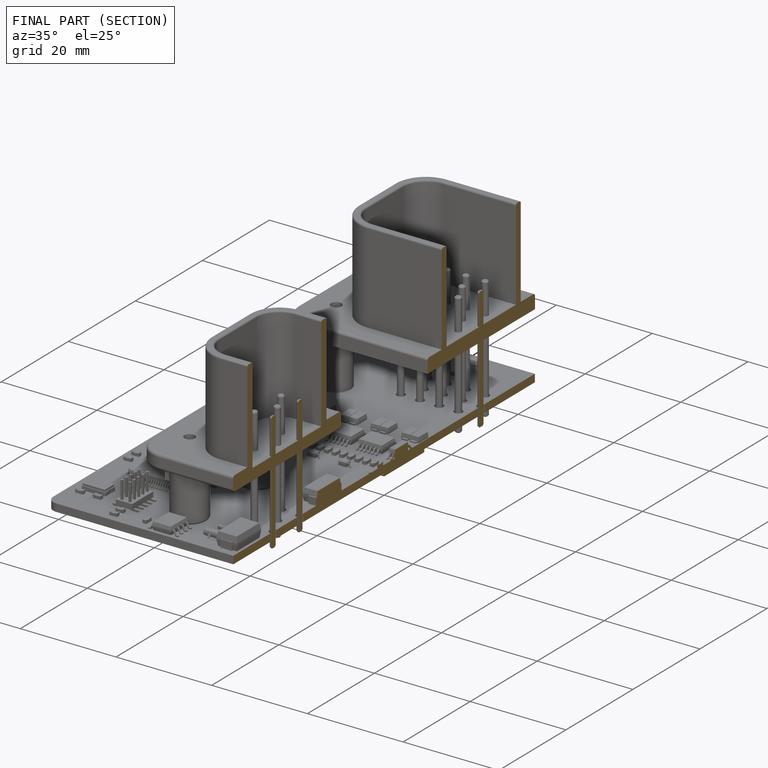
[diagram: finished part — half-section view (interior)]
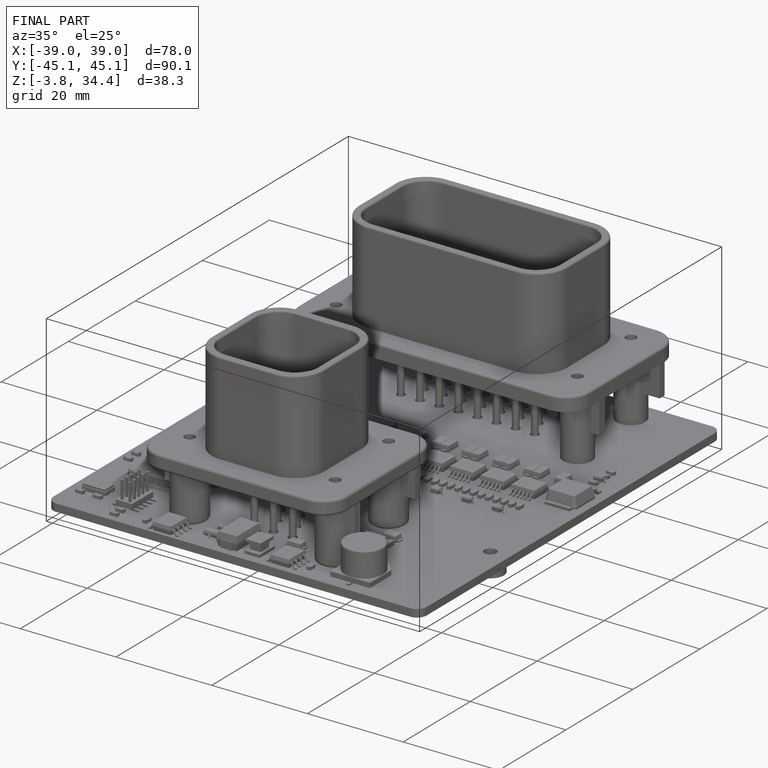
[diagram: finished part — iso view with bounding-box wireframe]
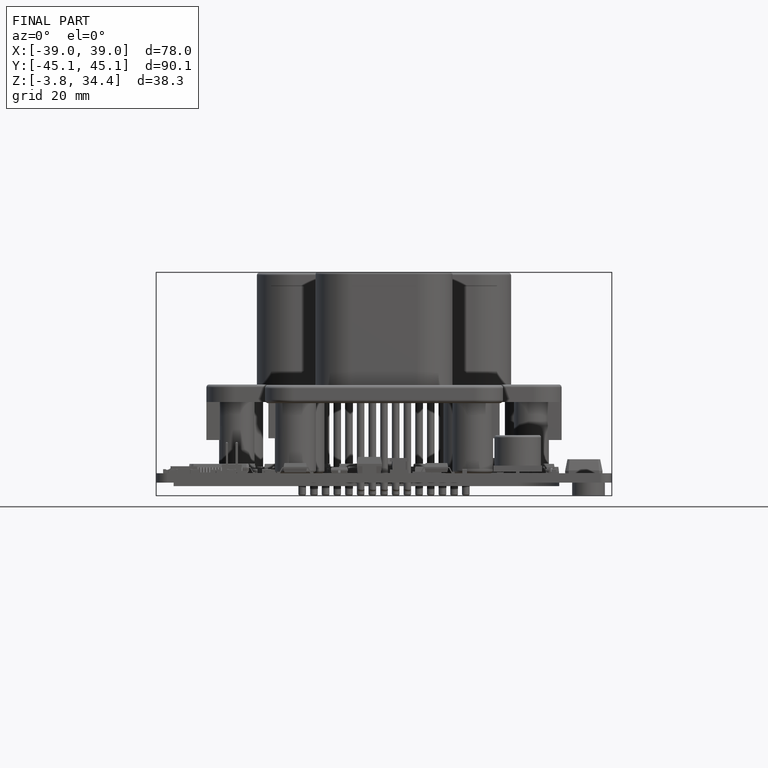
[diagram: finished part — front view with bounding-box wireframe]
